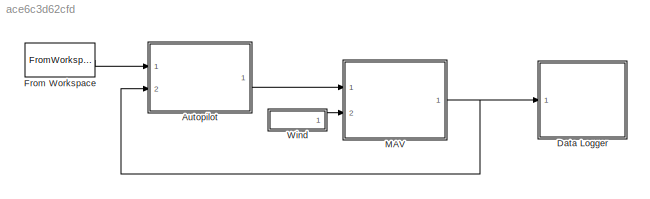
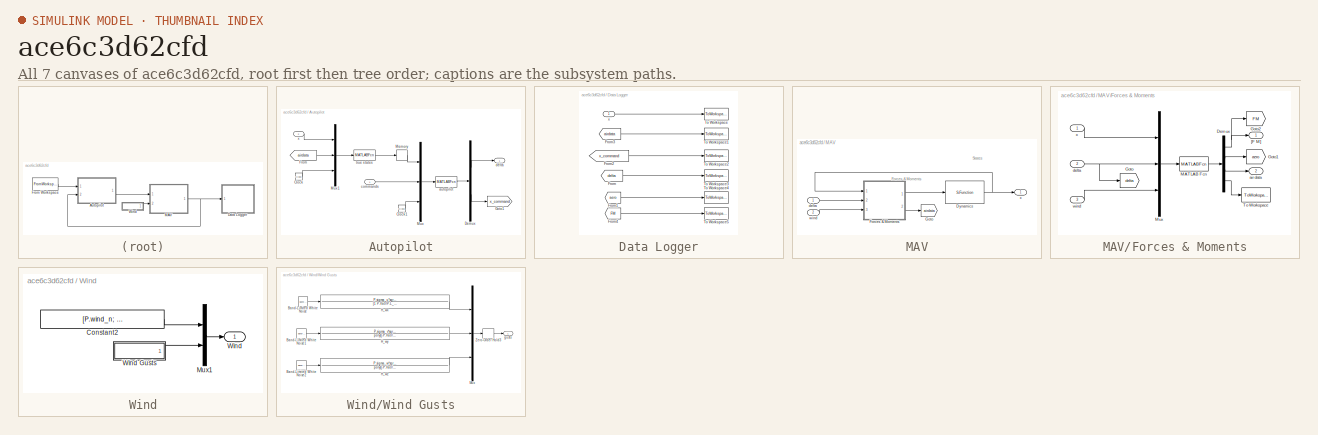
[diagram: thumbnail index - all 7 canvases of the model, root first then tree order]
MODEL slx_ace6c3d62cfd
KIND model
CONFIG AbsTol = 1e-3
CONFIG EnableMultiTasking = on
CONFIG FixedStep = P.Ts
CONFIG MaxStep = auto
CONFIG MinStep = auto
CONFIG RelTol = 1e-6
CONFIG SampleTimeConstraint = Unconstrained
CONFIG SolverName = ode4
CONFIG StartTime = 0.0
CONFIG StopTime = T
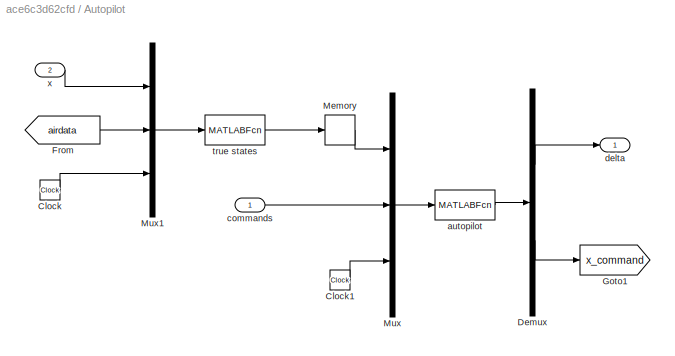
BLOCK [SubSystem] Autopilot
  Ports = [2, 1]
  RequestExecContextInheritance = off
BLOCK [Clock] Autopilot/Clock
BLOCK [Clock] Autopilot/Clock1
BLOCK [Demux] Autopilot/Demux
  Outputs = [4;2]
  Ports = [1, 2]
BLOCK [From] Autopilot/From
  GotoTag = airdata
  TagVisibility = global
BLOCK [Goto] Autopilot/Goto1
  GotoTag = x_command
  TagVisibility = global
BLOCK [Memory] Autopilot/Memory
BLOCK [Mux] Autopilot/Mux
  DisplayOption = bar
  Inputs = 3
  Ports = [3, 1]
BLOCK [Mux] Autopilot/Mux1
  DisplayOption = bar
  Inputs = 3
  Ports = [3, 1]
BLOCK [MATLABFcn] Autopilot/autopilot
  MATLABFcn = autopilot(u,P)
  OutputDimensions = 4+2
  Ports = [1, 1]
  SampleTime = P.Ts
BLOCK [Inport] Autopilot/commands
BLOCK [Outport] Autopilot/delta
  VectorParamsAs1DForOutWhenUnconnected = off
BLOCK [MATLABFcn] Autopilot/true states
  MATLABFcn = true_states(u,P)
  OutputDimensions = 19
  Ports = [1, 1]
  SampleTime = P.Ts
BLOCK [Inport] Autopilot/x
  Port = 2
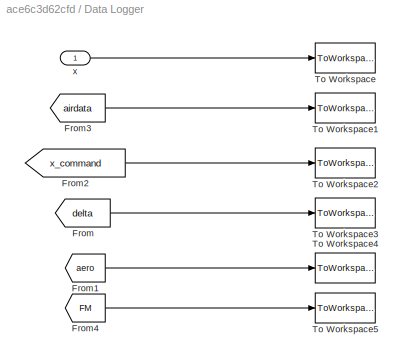
BLOCK [SubSystem] Data Logger
  Ports = [1]
  RequestExecContextInheritance = off
BLOCK [From] Data Logger/From
  GotoTag = delta
  IconDisplay = Tag and signal name
  TagVisibility = global
BLOCK [From] Data Logger/From1
  GotoTag = aero
  TagVisibility = global
BLOCK [From] Data Logger/From2
  GotoTag = x_command
  IconDisplay = Tag and signal name
  TagVisibility = global
BLOCK [From] Data Logger/From3
  GotoTag = airdata
  IconDisplay = Tag and signal name
  TagVisibility = global
BLOCK [From] Data Logger/From4
  GotoTag = FM
  TagVisibility = global
BLOCK [ToWorkspace] Data Logger/To Workspace
  FixptAsFi = on
  MaxDataPoints = inf
  Ports = [1]
  SampleTime = -1
  SaveFormat = Structure With Time
  VariableName = state
BLOCK [ToWorkspace] Data Logger/To Workspace1
  FixptAsFi = on
  MaxDataPoints = inf
  Ports = [1]
  SampleTime = -1
  SaveFormat = Structure With Time
  VariableName = airdata
BLOCK [ToWorkspace] Data Logger/To Workspace2
  FixptAsFi = on
  MaxDataPoints = inf
  Ports = [1]
  SampleTime = -1
  SaveFormat = Structure With Time
  VariableName = x_command
BLOCK [ToWorkspace] Data Logger/To Workspace3
  FixptAsFi = on
  MaxDataPoints = inf
  Ports = [1]
  SampleTime = -1
  SaveFormat = Structure With Time
  VariableName = delta
BLOCK [ToWorkspace] Data Logger/To Workspace4
  FixptAsFi = on
  MaxDataPoints = inf
  Ports = [1]
  SampleTime = -1
  SaveFormat = Structure With Time
  VariableName = aero
BLOCK [ToWorkspace] Data Logger/To Workspace5
  FixptAsFi = on
  MaxDataPoints = inf
  Ports = [1]
  SampleTime = -1
  SaveFormat = Structure With Time
  VariableName = FM
BLOCK [Inport] Data Logger/x
BLOCK [FromWorkspace] From Workspace
  VariableName = reference
BLOCK [SubSystem] MAV
  Ports = [2, 1]
  RequestExecContextInheritance = off
BLOCK [S-Function] MAV/Dynamics
  EnableBusSupport = off
  FunctionName = mav_dynamics
  Parameters = P
  Ports = [1, 1]
  SFcnIsStateOwnerBlock = off
  SFunctionDeploymentMode = off
BLOCK [SubSystem] MAV/Forces & Moments
  Ports = [3, 2]
  RequestExecContextInheritance = off
BLOCK [Demux] MAV/Forces & Moments/Demux
  Outputs = [6;6;6;1]
  Ports = [1, 4]
BLOCK [Goto] MAV/Forces & Moments/Goto
  GotoTag = delta
  TagVisibility = global
BLOCK [Goto] MAV/Forces & Moments/Goto1
  GotoTag = aero
  TagVisibility = global
BLOCK [Goto] MAV/Forces & Moments/Goto2
  GotoTag = FM
  TagVisibility = global
BLOCK [MATLABFcn] MAV/Forces & Moments/MATLAB Fcn
  MATLABFcn = forces_moments(u(1:12),u(13:16),u(17:22),P)
  OutputDimensions = 19
  Ports = [1, 1]
BLOCK [Mux] MAV/Forces & Moments/Mux
  DisplayOption = bar
  Inputs = 3
  Ports = [3, 1]
BLOCK [ToWorkspace] MAV/Forces & Moments/To Workspace
  FixptAsFi = on
  MaxDataPoints = inf
  Ports = [1]
  SampleTime = -1
  VariableName = u_r
BLOCK [Outport] MAV/Forces & Moments/[F M]
  VectorParamsAs1DForOutWhenUnconnected = off
BLOCK [Outport] MAV/Forces & Moments/air data
  Port = 2
  VectorParamsAs1DForOutWhenUnconnected = off
BLOCK [Inport] MAV/Forces & Moments/delta
  Port = 2
BLOCK [Inport] MAV/Forces & Moments/wind
  Port = 3
BLOCK [Inport] MAV/Forces & Moments/x
BLOCK [Goto] MAV/Goto
  GotoTag = airdata
  TagVisibility = global
BLOCK [Inport] MAV/delta
BLOCK [Inport] MAV/wind
  Port = 2
BLOCK [Outport] MAV/x
  VectorParamsAs1DForOutWhenUnconnected = off
BLOCK [SubSystem] Wind
  Ports = [0, 1]
  RequestExecContextInheritance = off
BLOCK [Constant] Wind/Constant2
  Value = [P.wind_n; P.wind_e; P.wind_d]
BLOCK [Mux] Wind/Mux1
  DisplayOption = bar
  Inputs = 2
  Ports = [2, 1]
BLOCK [Outport] Wind/Wind
  VectorParamsAs1DForOutWhenUnconnected = off
BLOCK [SubSystem] Wind/Wind Gusts
  Ports = [0, 1]
  RequestExecContextInheritance = off
BLOCK [Reference] Wind/Wind Gusts/Band-Limited White Noise  REF=simulink/Sources/Band-Limited
White Noise
  Ports = [0, 1]
  SourceBlock = simulink/Sources/Band-Limited\nWhite Noise
  SourceProductBaseCode = SL
  SourceType = Band-Limited White Noise.
BLOCK [Reference] Wind/Wind Gusts/Band-Limited White Noise1  REF=simulink/Sources/Band-Limited
White Noise
  Ports = [0, 1]
  SourceBlock = simulink/Sources/Band-Limited\nWhite Noise
  SourceProductBaseCode = SL
  SourceType = Band-Limited White Noise.
BLOCK [Reference] Wind/Wind Gusts/Band-Limited White Noise2  REF=simulink/Sources/Band-Limited
White Noise
  Ports = [0, 1]
  SourceBlock = simulink/Sources/Band-Limited\nWhite Noise
  SourceProductBaseCode = SL
  SourceType = Band-Limited White Noise.
BLOCK [TransferFcn] Wind/Wind Gusts/H_wx
  Denominator = [1 P.Va0/P.L_u]
  Numerator = P.sigma_u*sqrt(2*P.Va0/P.L_u)
BLOCK [TransferFcn] Wind/Wind Gusts/H_wy
  Denominator = poly([-P.Va0/P.L_v, -P.Va0/P.L_v])
  Numerator = P.sigma_v*sqrt(3*P.Va0/P.L_v)*[0, 1, P.Va0/sqrt(3)/P.L_v]
BLOCK [TransferFcn] Wind/Wind Gusts/H_wz
  Denominator = poly([-P.Va0/P.L_w, -P.Va0/P.L_w])
  Numerator = P.sigma_w*sqrt(3*P.Va0/P.L_w)*[0, 1, P.Va0/sqrt(3)/P.L_w]
BLOCK [Mux] Wind/Wind Gusts/Mux
  DisplayOption = bar
  Inputs = 3
  Ports = [3, 1]
BLOCK [ZeroOrderHold] Wind/Wind Gusts/Zero-Order Hold3
  SampleTime = P.Ts
BLOCK [Outport] Wind/Wind Gusts/gusts
  VectorParamsAs1DForOutWhenUnconnected = off
ANNOTATION MAV: Forces & Moments
ANNOTATION MAV: States
LINE Autopilot/Clock1:1 -> Autopilot/Mux:3
LINE Autopilot/Clock:1 -> Autopilot/Mux1:3
LINE Autopilot/Demux:1 -> Autopilot/delta:1
LINE Autopilot/Demux:2 -> Autopilot/Goto1:1
LINE Autopilot/From:1 -> Autopilot/Mux1:2
LINE Autopilot/Memory:1 -> Autopilot/Mux:1
LINE Autopilot/Mux1:1 -> Autopilot/true states:1
LINE Autopilot/Mux:1 -> Autopilot/autopilot:1
LINE Autopilot/autopilot:1 -> Autopilot/Demux:1
LINE Autopilot/commands:1 -> Autopilot/Mux:2
LINE Autopilot/true states:1 -> Autopilot/Memory:1
LINE Autopilot/x:1 -> Autopilot/Mux1:1
LINE Autopilot:1 -> MAV:1
LINE Data Logger/From1:1 -> Data Logger/To Workspace4:1
LINE Data Logger/From2:1 -> Data Logger/To Workspace2:1
LINE Data Logger/From3:1 -> Data Logger/To Workspace1:1
LINE Data Logger/From4:1 -> Data Logger/To Workspace5:1
LINE Data Logger/From:1 -> Data Logger/To Workspace3:1
LINE Data Logger/x:1 -> Data Logger/To Workspace:1
LINE From Workspace:1 -> Autopilot:1
NET MAV/Dynamics:1 -> MAV/Forces & Moments:1, MAV/x:1
NET MAV/Forces & Moments/Demux:1 -> MAV/Forces & Moments/Goto2:1, MAV/Forces & Moments/[F M]:1
LINE MAV/Forces & Moments/Demux:2 -> MAV/Forces & Moments/Goto1:1
LINE MAV/Forces & Moments/Demux:3 -> MAV/Forces & Moments/air data:1
LINE MAV/Forces & Moments/Demux:4 -> MAV/Forces & Moments/To Workspace:1
LINE MAV/Forces & Moments/MATLAB Fcn:1 -> MAV/Forces & Moments/Demux:1
LINE MAV/Forces & Moments/Mux:1 -> MAV/Forces & Moments/MATLAB Fcn:1
NET MAV/Forces & Moments/delta:1 -> MAV/Forces & Moments/Goto:1, MAV/Forces & Moments/Mux:2
LINE MAV/Forces & Moments/wind:1 -> MAV/Forces & Moments/Mux:3
LINE MAV/Forces & Moments/x:1 -> MAV/Forces & Moments/Mux:1
LINE MAV/Forces & Moments:1 -> MAV/Dynamics:1
LINE MAV/Forces & Moments:2 -> MAV/Goto:1
LINE MAV/delta:1 -> MAV/Forces & Moments:2
LINE MAV/wind:1 -> MAV/Forces & Moments:3
NET MAV:1 -> Autopilot:2, Data Logger:1
LINE Wind/Constant2:1 -> Wind/Mux1:1
LINE Wind/Mux1:1 -> Wind/Wind:1
LINE Wind/Wind Gusts/Band-Limited White Noise1:1 -> Wind/Wind Gusts/H_wy:1
LINE Wind/Wind Gusts/Band-Limited White Noise2:1 -> Wind/Wind Gusts/H_wz:1
LINE Wind/Wind Gusts/Band-Limited White Noise:1 -> Wind/Wind Gusts/H_wx:1
LINE Wind/Wind Gusts/H_wx:1 -> Wind/Wind Gusts/Mux:1
LINE Wind/Wind Gusts/H_wy:1 -> Wind/Wind Gusts/Mux:2
LINE Wind/Wind Gusts/H_wz:1 -> Wind/Wind Gusts/Mux:3
LINE Wind/Wind Gusts/Mux:1 -> Wind/Wind Gusts/Zero-Order Hold3:1
LINE Wind/Wind Gusts/Zero-Order Hold3:1 -> Wind/Wind Gusts/gusts:1
LINE Wind/Wind Gusts:1 -> Wind/Mux1:2
LINE Wind:1 -> MAV:2
note: NET lines group one-source signal fan-out (src -> all destinations, sorted); 1:1 wires keep LINE
